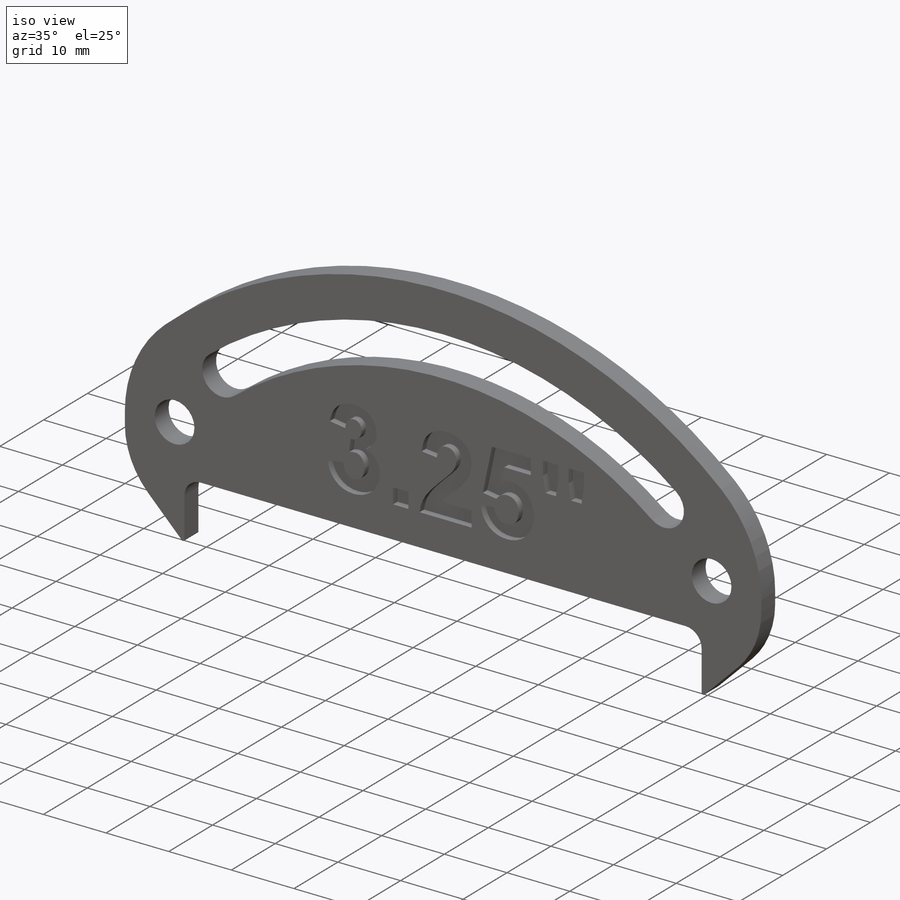
[diagram: iso view]
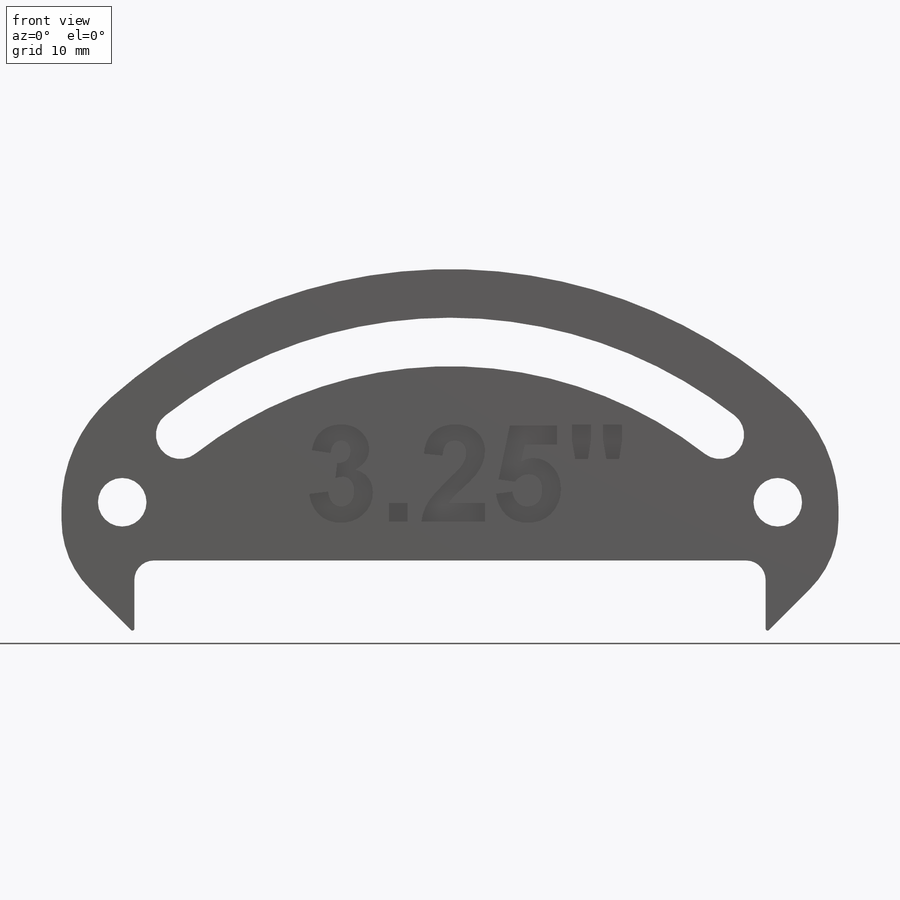
[diagram: front view]
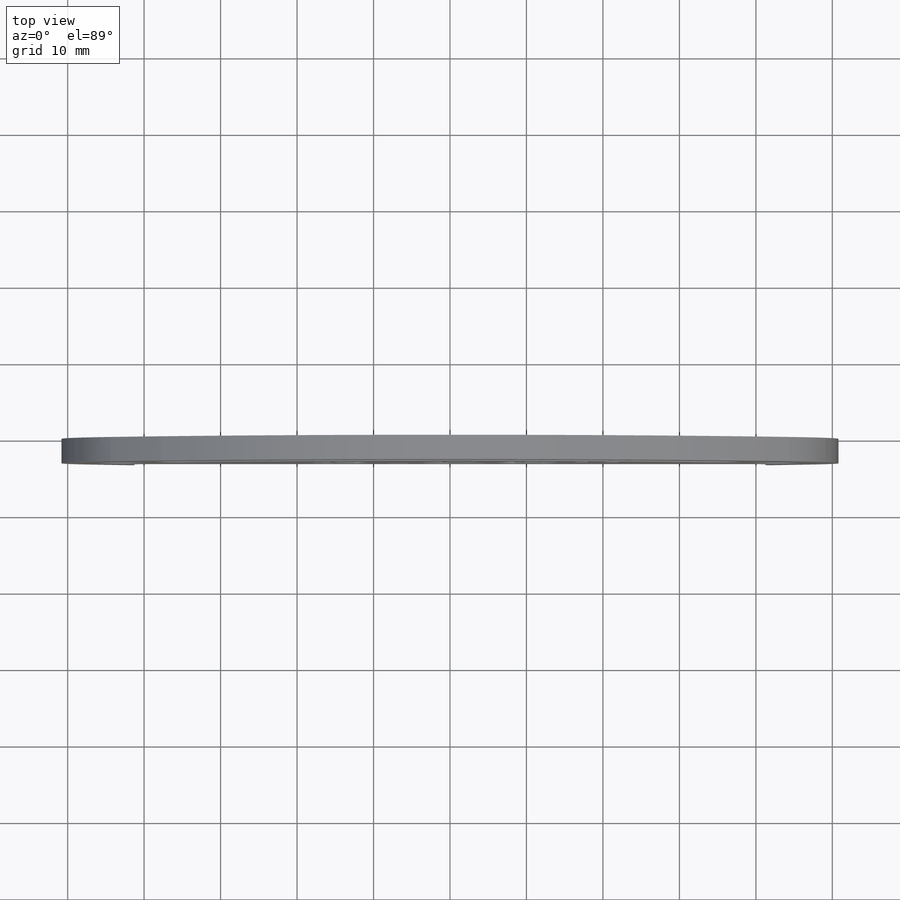
[diagram: top view]
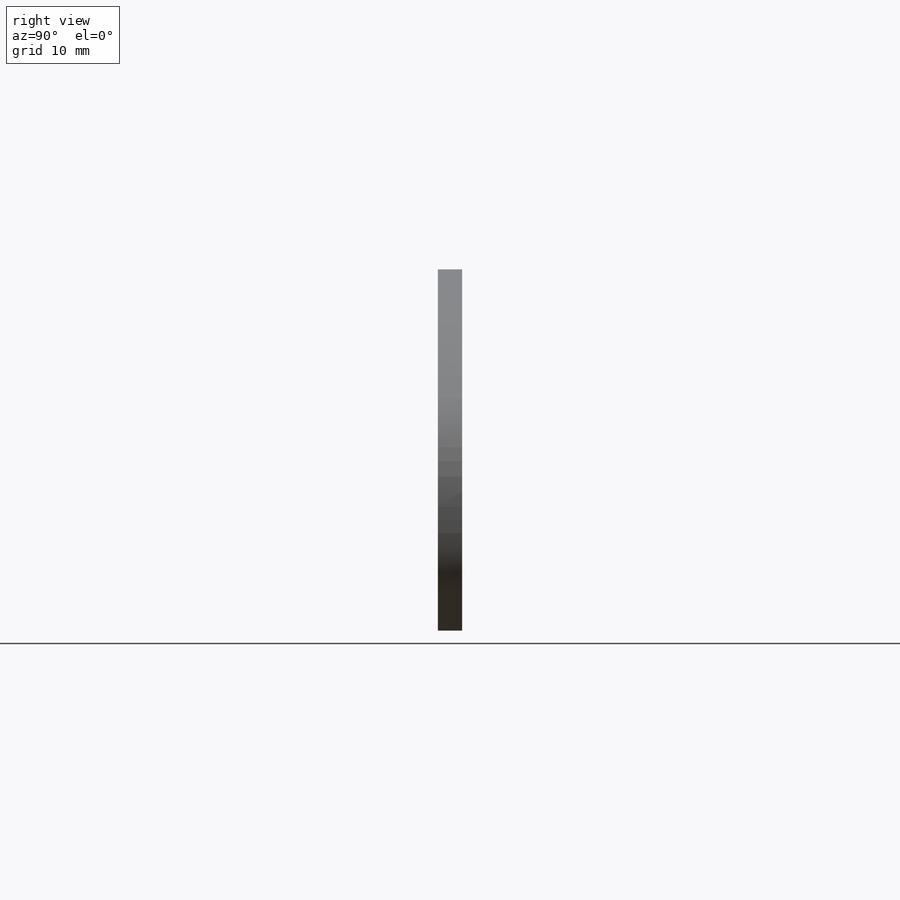
[diagram: right view]
SOLIDWORKS PART (.sldprt)
format: sldprt  version: not decoded by parser v0  size: 702,976 bytes
history: native  units: mm
features: sketch x3, cut_extrude x2, material x1, extrude x1 (+12 scaffold rows collapsed)
feature tree (19):
  scaffold x12  (default folders/planes/origin — collapsed)
  material  "Material <not specified>"
  sketch  "Sketch1"  dims[c1.D5=~66.931981mm c1.D7=3.175mm c1.D8=19.05mm c1.D10=12.7mm c1.D12=6.35mm c1.D14=2.54mm c1.D15=0.254mm c1.D1=9.525mm c1.D2=9.525mm c1.D3=82.55mm c1.D4=38.1mm c1.D9=~12.138237mm c2.D9=130.0deg c2.D10=~40.086838mm c3.D10=15.0deg c3.D11=~38.720912mm c4.D11=15.0deg c5.D11=85.725mm c5.D12=76.2mm c5.D13=7.62mm c5.D6=6.35mm c5.D7=6.35mm c5.D8=3.175mm]
  extrude  "Boss-Extrude1"  Depth=3.175mm
  sketch  "Sketch2"  dims[c1.D1=2.54mm c1.D2=38.1mm c1.D3=2.54mm c2.D1=5.08mm c2.D2=38.1mm]
  cut_extrude  "Cut-Extrude1"  Depth=1.016mm
  sketch  "Sketch5"  dims[D1=11.43mm]
  cut_extrude  "Cut-Extrude2"  Depth=1.016mm
decode coverage: 6 of 6 modeling features carry decoded parameters
note: ~ marks probable driven/reference dimensions
note: suppression state not decoded; provenance and decode notes live in map.json
